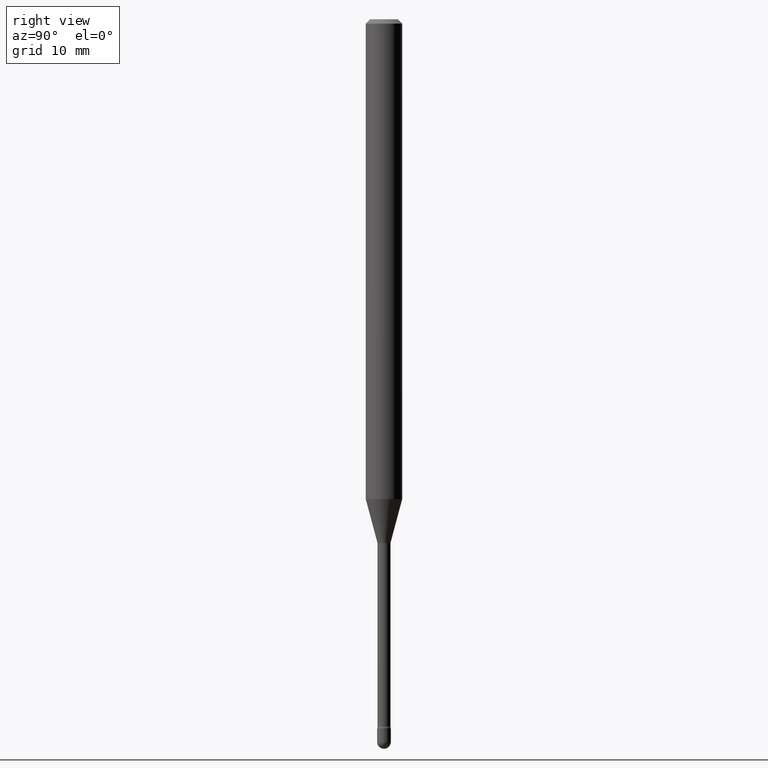
[diagram: clean part render]
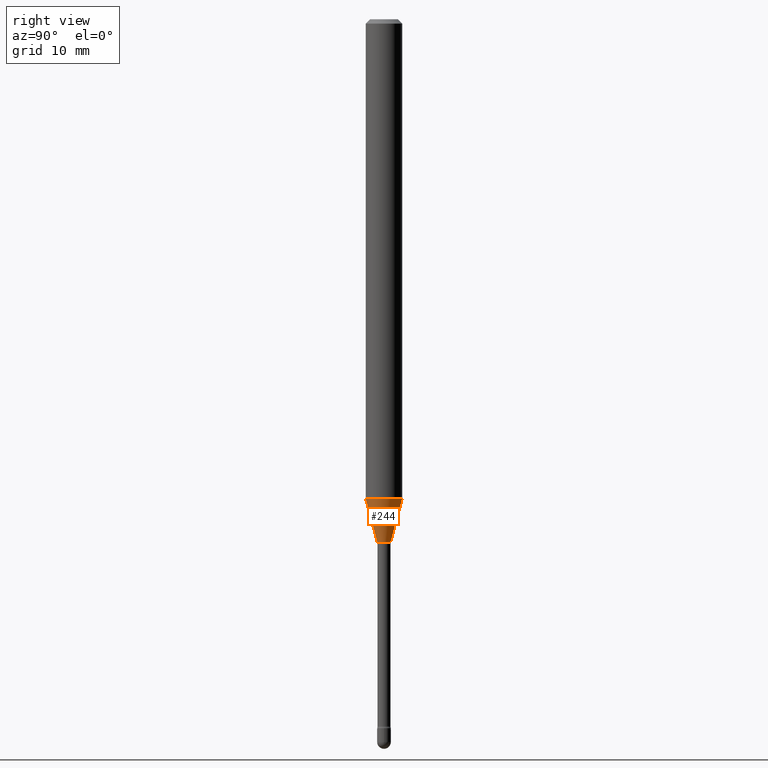
[diagram: same view with one face highlighted and labeled with its STEP entity id]
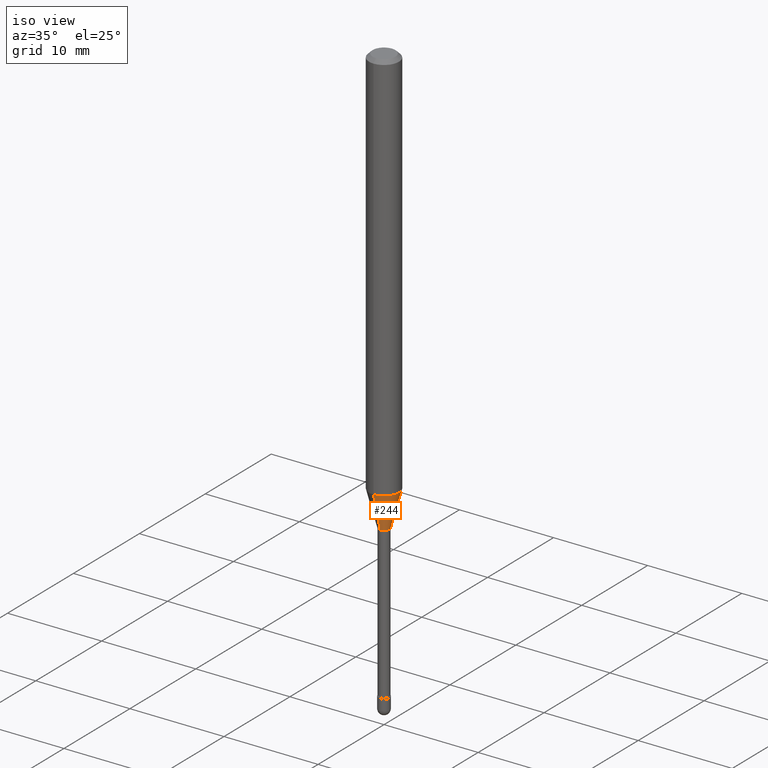
[diagram: same view with one face highlighted and labeled with its STEP entity id]
A machine part, right view. The second image highlights one B-rep face of the part: STEP entity #244.
A second angle (iso view) of the same face is appended — the face is thin or edge-on in the first view.
In plain terms, the highlighted conical surface has half-angle 15 deg.
Its self-contained STEP definition (entity closure, byte-faithful):
#13 = DIRECTION ( 'NONE',  ( -1.807323732225328562E-15, -0.2588190451025179639, 0.9659258262890689783 ) ) ;
#21 = DIRECTION ( 'NONE',  ( 1.839019923739599526E-15, 0.2588190451025248473, 0.9659258262890673130 ) ) ;
#40 = CIRCLE ( 'NONE', #251, 0.06250000000000000000 ) ;
#52 = EDGE_CURVE ( 'NONE', #97, #236, #522, .T. ) ;
#58 = DIRECTION ( 'NONE',  ( -2.445453670294399480E-29, 3.491503014300162329E-15, 1.000000000000000000 ) ) ;
#92 = EDGE_CURVE ( 'NONE', #97, #525, #128, .T. ) ;
#94 = CARTESIAN_POINT ( 'NONE',  ( 3.023754139721142721E-16, 0.02261111260565773148, -1.793092501787273196 ) ) ;
#97 = VERTEX_POINT ( 'NONE', #406 ) ;
#103 = VERTEX_POINT ( 'NONE', #187 ) ;
#113 = EDGE_CURVE ( 'NONE', #525, #103, #281, .T. ) ;
#120 = VECTOR ( 'NONE', #13, 39.37007874015749564 ) ;
#128 = CIRCLE ( 'NONE', #245, 0.02261111260566398690 ) ;
#187 = CARTESIAN_POINT ( 'NONE',  ( 4.440892098501025523E-16, 0.06249999999999423378, -1.644225147374218210 ) ) ;
#192 = ORIENTED_EDGE ( 'NONE', *, *, #113, .T. ) ;
#203 = DIRECTION ( 'NONE',  ( -2.445453670294399480E-29, 3.491503014300162329E-15, 1.000000000000000000 ) ) ;
#226 = DIRECTION ( 'NONE',  ( -6.982962677686265922E-15, -1.000000000000000000, 0.000000000000000000 ) ) ;
#236 = VERTEX_POINT ( 'NONE', #473 ) ;
#244 = ADVANCED_FACE ( 'NONE', ( #341 ), #459, .T. ) ;
#245 = AXIS2_PLACEMENT_3D ( 'NONE', #432, #58, #226 ) ;
#251 = AXIS2_PLACEMENT_3D ( 'NONE', #290, #462, #296 ) ;
#271 = EDGE_CURVE ( 'NONE', #236, #103, #40, .T. ) ;
#281 = LINE ( 'NONE', #369, #523 ) ;
#290 = CARTESIAN_POINT ( 'NONE',  ( 4.020876421436631309E-29, -5.740817058245210280E-15, -1.644225147374217988 ) ) ;
#296 = DIRECTION ( 'NONE',  ( -6.982962677686265922E-15, -1.000000000000000000, 4.370956789862821150E-15 ) ) ;
#341 = FACE_OUTER_BOUND ( 'NONE', #417, .T. ) ;
#358 = ORIENTED_EDGE ( 'NONE', *, *, #92, .T. ) ;
#369 = CARTESIAN_POINT ( 'NONE',  ( 1.606616180941255974E-16, 0.02261111260565772454, -1.793092501787273196 ) ) ;
#377 = DIRECTION ( 'NONE',  ( -6.982962677686265922E-15, -1.000000000000000000, 0.000000000000000000 ) ) ;
#403 = CARTESIAN_POINT ( 'NONE',  ( -1.578925554262692203E-16, -0.02261111260567024925, -1.793092501787273196 ) ) ;
#406 = CARTESIAN_POINT ( 'NONE',  ( -1.578925554262692203E-16, -0.02261111260567024925, -1.793092501787273196 ) ) ;
#417 = EDGE_LOOP ( 'NONE', ( #358, #192, #434, #515 ) ) ;
#420 = AXIS2_PLACEMENT_3D ( 'NONE', #463, #203, #377 ) ;
#432 = CARTESIAN_POINT ( 'NONE',  ( 4.384924639673054257E-29, -6.260587874909283975E-15, -1.793092501787273196 ) ) ;
#434 = ORIENTED_EDGE ( 'NONE', *, *, #271, .F. ) ;
#459 = CONICAL_SURFACE ( 'NONE', #420, 0.02261111260566398690, 0.2617993877991501295 ) ;
#462 = DIRECTION ( 'NONE',  ( -2.445453670294399480E-29, 3.491503014300162329E-15, 1.000000000000000000 ) ) ;
#463 = CARTESIAN_POINT ( 'NONE',  ( 4.384924639673054257E-29, -6.260587874909283975E-15, -1.793092501787273196 ) ) ;
#473 = CARTESIAN_POINT ( 'NONE',  ( -4.364351673553515854E-16, -0.06250000000000575928, -1.644225147374217544 ) ) ;
#515 = ORIENTED_EDGE ( 'NONE', *, *, #52, .F. ) ;
#522 = LINE ( 'NONE', #403, #120 ) ;
#523 = VECTOR ( 'NONE', #21, 39.37007874015747433 ) ;
#525 = VERTEX_POINT ( 'NONE', #94 ) ;